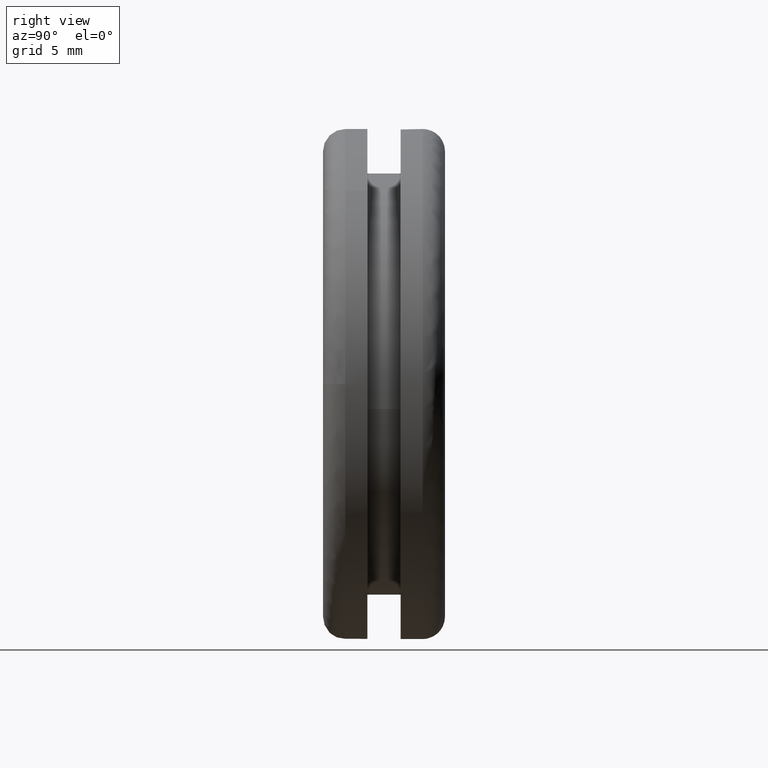
[diagram: clean part render]
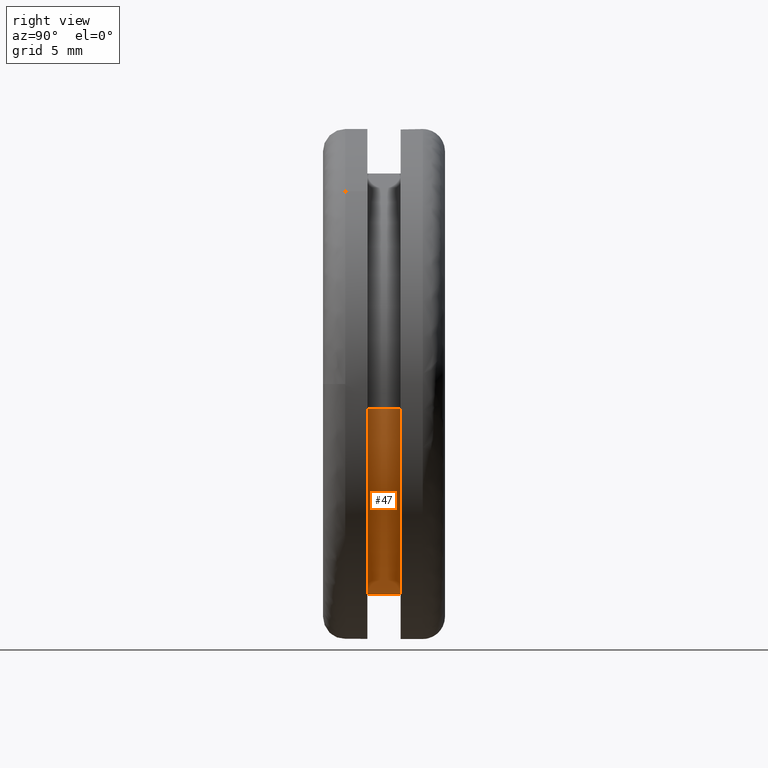
[diagram: same view with one face highlighted and labeled with its STEP entity id]
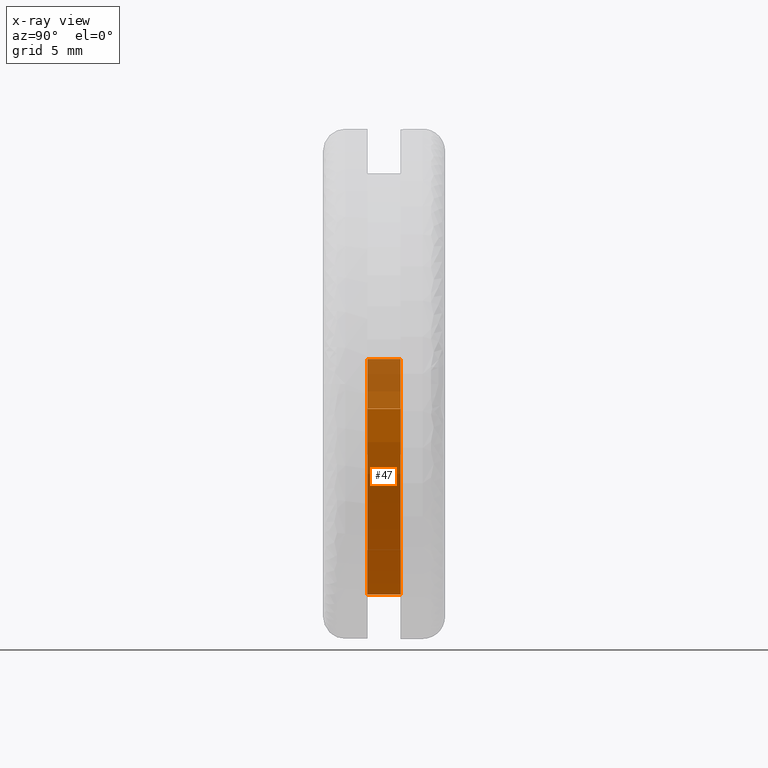
[diagram: x-ray of the same camera — body ghosted, the highlighted face saturated]
A machine part, right view. The second image highlights one B-rep face of the part: STEP entity #47.
The next image is the same camera in x-ray: the body ghosted, the highlighted face saturated — about 21% of this face is hidden behind the body in this view.
In plain terms, the highlighted cylindrical surface (partial cylindrical patch) has radius 9.5 mm, axis along (-0, 1, -0).
Its self-contained STEP definition (entity closure, byte-faithful):
#47=ADVANCED_FACE('',(#131),#130,.T.);
#130=CYLINDRICAL_SURFACE('',#262,9.50000000000E+000);
#131=FACE_OUTER_BOUND('',#263,.T.);
#259=CARTESIAN_POINT('',(2.49537272976E-016,3.53750000000E+000,-4.37168135886E-016));
#260=DIRECTION('',(-5.75729912391E-017,1.00000000000E+000,-4.84355483203E-016));
#261=DIRECTION('',(-9.93009526364E-001,-2.46519032882E-032,1.18034234657E-001));
#262=AXIS2_PLACEMENT_3D('',#259,#260,#261);
#263=EDGE_LOOP('',(#430,#431,#432,#433,#434,#435));
#430=ORIENTED_EDGE('',*,*,#489,.F.);
#431=ORIENTED_EDGE('',*,*,#491,.F.);
#432=ORIENTED_EDGE('',*,*,#519,.T.);
#433=ORIENTED_EDGE('',*,*,#495,.T.);
#434=ORIENTED_EDGE('',*,*,#497,.T.);
#435=ORIENTED_EDGE('',*,*,#520,.F.);
#489=EDGE_CURVE('',#556,#557,#558,.T.);
#491=EDGE_CURVE('',#564,#556,#571,.T.);
#495=EDGE_CURVE('',#598,#599,#600,.T.);
#497=EDGE_CURVE('',#599,#606,#613,.T.);
#519=EDGE_CURVE('',#564,#598,#764,.T.);
#520=EDGE_CURVE('',#557,#606,#770,.T.);
#556=VERTEX_POINT('',#881);
#557=VERTEX_POINT('',#882);
#558=CIRCLE('',#886,9.50000000000E+000);
#564=VERTEX_POINT('',#887);
#571=CIRCLE('',#895,9.50000000000E+000);
#598=VERTEX_POINT('',#911);
#599=VERTEX_POINT('',#912);
#600=CIRCLE('',#916,9.50000000000E+000);
#606=VERTEX_POINT('',#917);
#613=CIRCLE('',#925,9.50000000000E+000);
#764=(BOUNDED_CURVE() B_SPLINE_CURVE(1,(#1025,#1026),.UNSPECIFIED.,.F.,.F.) B_SPLINE_CURVE_WITH_KNOTS((2,2),(8.33333134656E-002,9.16666653270E-001),.UNSPECIFIED.) CURVE() GEOMETRIC_REPRESENTATION_ITEM() RATIONAL_B_SPLINE_CURVE((1.00000000000E+000,1.00000000000E+000)) REPRESENTATION_ITEM('') );
#770=(BOUNDED_CURVE() B_SPLINE_CURVE(1,(#1027,#1028),.UNSPECIFIED.,.F.,.F.) B_SPLINE_CURVE_WITH_KNOTS((2,2),(8.33333333334E-002,9.16666666667E-001),.UNSPECIFIED.) CURVE() GEOMETRIC_REPRESENTATION_ITEM() RATIONAL_B_SPLINE_CURVE((7.50000000000E-001,7.50000000000E-001)) REPRESENTATION_ITEM('') );
#881=CARTESIAN_POINT('',(-1.77635683940E-015,2.00000000000E+000,-9.50000000000E+000));
#882=CARTESIAN_POINT('',(9.43339655492E+000,2.00000000000E+000,-1.12295567035E+000));
#883=CARTESIAN_POINT('',(6.92779167366E-014,2.00000000000E+000,1.51878509769E-013));
#884=DIRECTION('',(2.91923264316E-015,-1.00000000000E+000,1.96087245233E-014));
#885=DIRECTION('',(-7.11930514541E-015,-1.96087245233E-014,-1.00000000000E+000));
#886=AXIS2_PLACEMENT_3D('',#883,#884,#885);
#887=CARTESIAN_POINT('',(-9.43359050867E+000,2.00000000000E+000,1.12132516010E+000));
#892=CARTESIAN_POINT('',(6.92779167366E-014,2.00000000000E+000,1.51878509769E-013));
#893=DIRECTION('',(2.91923264316E-015,-1.00000000000E+000,1.96087245233E-014));
#894=DIRECTION('',(-7.11930514541E-015,-1.96087245233E-014,-1.00000000000E+000));
#895=AXIS2_PLACEMENT_3D('',#892,#893,#894);
#911=CARTESIAN_POINT('',(-9.43359050867E+000,3.50000000000E+000,1.12132516010E+000));
#912=CARTESIAN_POINT('',(-2.22044604925E-015,3.50000000000E+000,-9.50000000000E+000));
#913=CARTESIAN_POINT('',(7.01660951563E-014,3.50000000000E+000,1.50102152929E-013));
#914=DIRECTION('',(-1.36554849265E-017,-1.00000000000E+000,-1.14882290180E-016));
#915=DIRECTION('',(-7.23032744787E-015,1.14882290180E-016,-1.00000000000E+000));
#916=AXIS2_PLACEMENT_3D('',#913,#914,#915);
#917=CARTESIAN_POINT('',(9.43339655492E+000,3.50000000000E+000,-1.12295567035E+000));
#922=CARTESIAN_POINT('',(7.01660951563E-014,3.50000000000E+000,1.50102152929E-013));
#923=DIRECTION('',(-1.36554849265E-017,-1.00000000000E+000,-1.14882290180E-016));
#924=DIRECTION('',(-7.23032744787E-015,1.14882290180E-016,-1.00000000000E+000));
#925=AXIS2_PLACEMENT_3D('',#922,#923,#924);
#1025=CARTESIAN_POINT('',(-9.43359050045E+000,1.99999996424E+000,1.12132522924E+000));
#1026=CARTESIAN_POINT('',(-9.43359050045E+000,3.49999997589E+000,1.12132522924E+000));
#1027=CARTESIAN_POINT('',(9.43359050045E+000,2.00000000000E+000,-1.12132522924E+000));
#1028=CARTESIAN_POINT('',(9.43359050045E+000,3.50000000000E+000,-1.12132522924E+000));